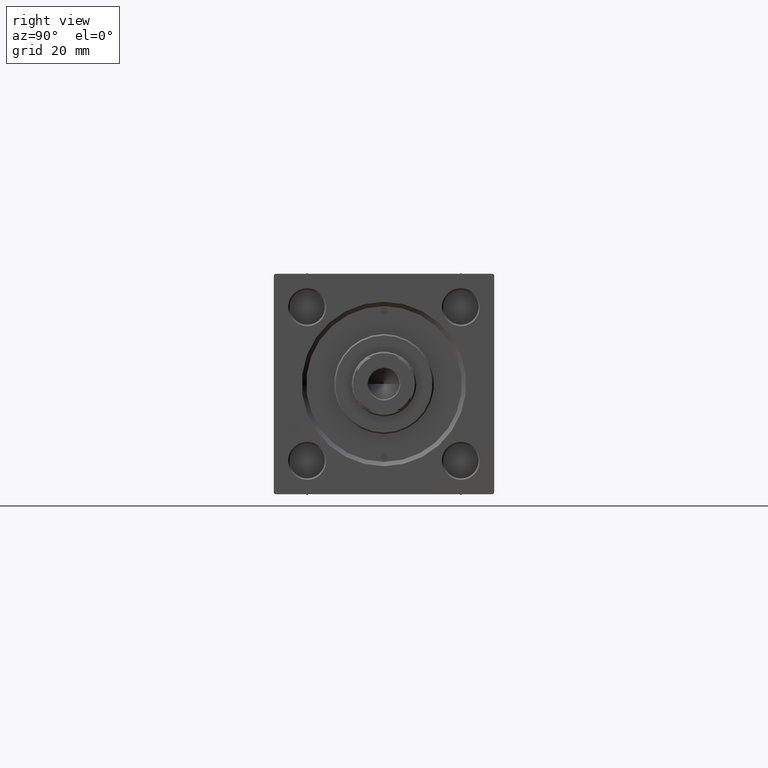
[diagram: clean part render]
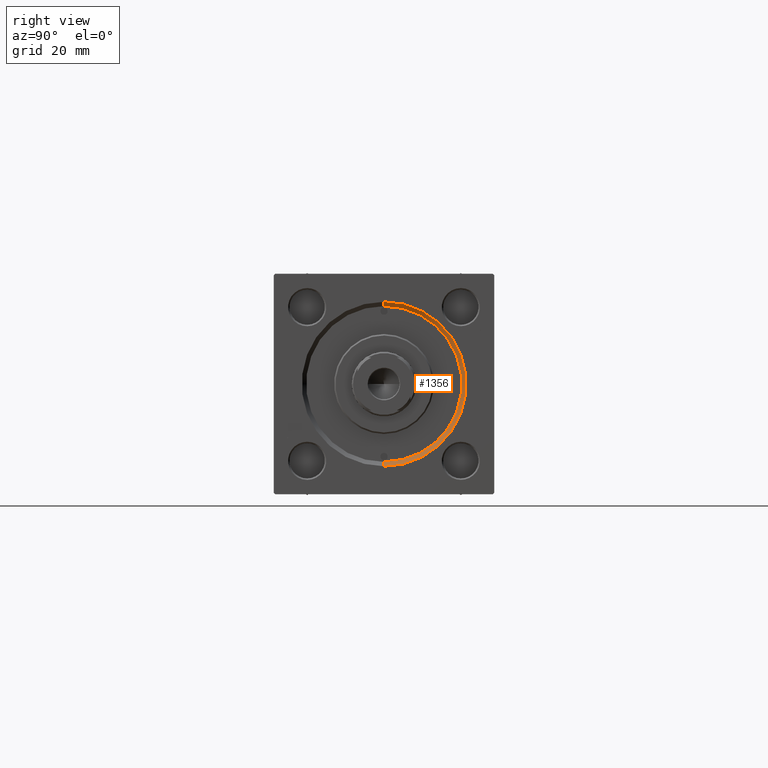
[diagram: same view with one face highlighted and labeled with its STEP entity id]
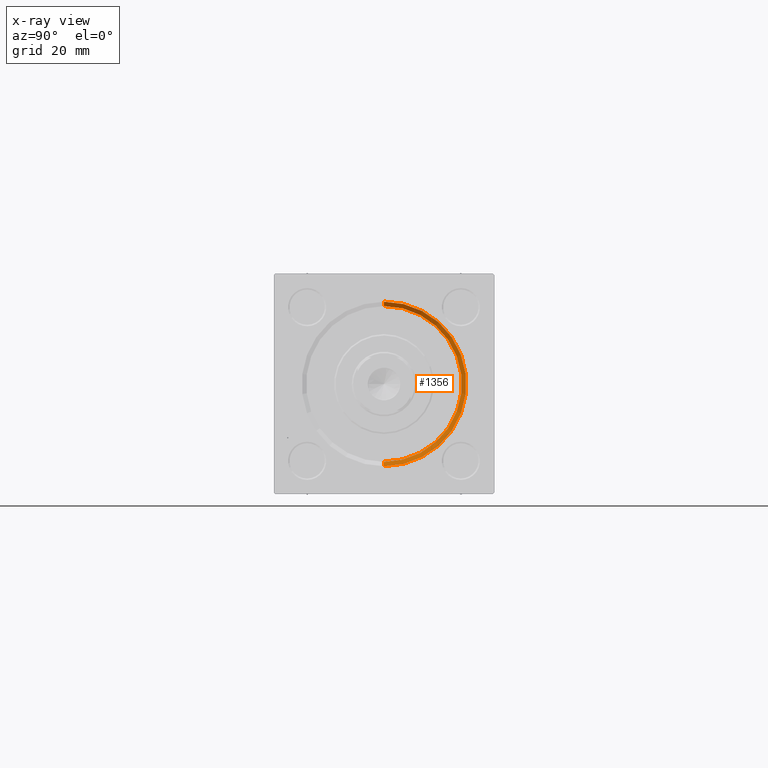
[diagram: x-ray of the same camera — body ghosted, the highlighted face saturated]
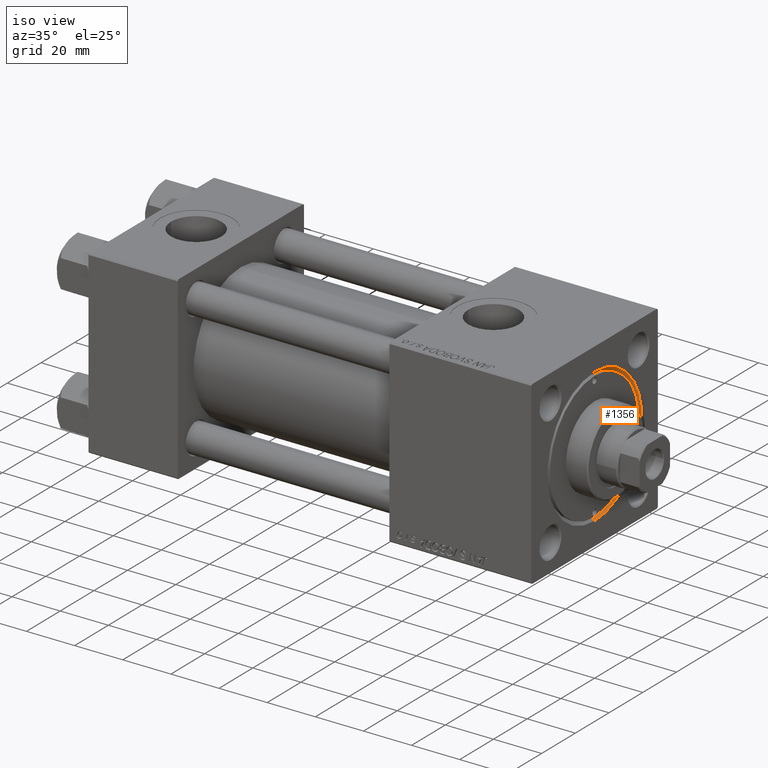
[diagram: same view with one face highlighted and labeled with its STEP entity id]
A machine part, right view. The second image highlights one B-rep face of the part: STEP entity #1356.
The next image is the same camera in x-ray: the body ghosted, the highlighted face saturated — about 0% of this face is hidden behind the body in this view.
A second angle (iso view) of the same face is appended — the face is thin or edge-on in the first view.
In plain terms, the highlighted conical surface has half-angle 45 deg.
Its self-contained STEP definition (entity closure, byte-faithful):
#133 = VECTOR ( 'NONE', #50311, 1000.000000000000000 ) ;
#938 = VECTOR ( 'NONE', #36911, 1000.000000000000000 ) ;
#1356 = ADVANCED_FACE ( 'NONE', ( #2083 ), #36156, .F. ) ;
#2083 = FACE_OUTER_BOUND ( 'NONE', #33406, .T. ) ;
#3771 = VERTEX_POINT ( 'NONE', #33731 ) ;
#6084 = CARTESIAN_POINT ( 'NONE',  ( 182.5000000000000284, 0.000000000000000000, -26.50000000000000355 ) ) ;
#8823 = VERTEX_POINT ( 'NONE', #8852 ) ;
#8852 = CARTESIAN_POINT ( 'NONE',  ( 184.0000000000000000, 3.429011037612588881E-15, 27.99999999999999645 ) ) ;
#9974 = CARTESIAN_POINT ( 'NONE',  ( 182.5000000000000284, 0.000000000000000000, 0.000000000000000000 ) ) ;
#10401 = DIRECTION ( 'NONE',  ( -1.000000000000000000, -0.000000000000000000, 0.000000000000000000 ) ) ;
#12675 = CARTESIAN_POINT ( 'NONE',  ( 182.5000000000000284, 0.000000000000000000, -26.50000000000000355 ) ) ;
#13058 = DIRECTION ( 'NONE',  ( 0.000000000000000000, 0.000000000000000000, -1.000000000000000000 ) ) ;
#18827 = CIRCLE ( 'NONE', #29419, 26.50000000000000355 ) ;
#18841 = CARTESIAN_POINT ( 'NONE',  ( 182.5000000000000284, 3.245314017740486554E-15, 26.50000000000000355 ) ) ;
#20883 = LINE ( 'NONE', #6084, #938 ) ;
#21388 = CARTESIAN_POINT ( 'NONE',  ( 184.0000000000000000, 0.000000000000000000, 0.000000000000000000 ) ) ;
#25547 = DIRECTION ( 'NONE',  ( 1.000000000000000000, 0.000000000000000000, 0.000000000000000000 ) ) ;
#29419 = AXIS2_PLACEMENT_3D ( 'NONE', #49812, #30490, #45974 ) ;
#29545 = DIRECTION ( 'NONE',  ( 0.000000000000000000, 0.000000000000000000, 1.000000000000000000 ) ) ;
#29655 = AXIS2_PLACEMENT_3D ( 'NONE', #9974, #25547, #13058 ) ;
#30490 = DIRECTION ( 'NONE',  ( 1.000000000000000000, 0.000000000000000000, 0.000000000000000000 ) ) ;
#31020 = CIRCLE ( 'NONE', #39958, 27.99999999999999645 ) ;
#33245 = VERTEX_POINT ( 'NONE', #18841 ) ;
#33406 = EDGE_LOOP ( 'NONE', ( #38981, #37085, #45071, #42984 ) ) ;
#33731 = CARTESIAN_POINT ( 'NONE',  ( 184.0000000000000000, 0.000000000000000000, -27.99999999999999645 ) ) ;
#34794 = CARTESIAN_POINT ( 'NONE',  ( 182.5000000000000284, 3.245314017740486554E-15, 26.50000000000000355 ) ) ;
#36156 = CONICAL_SURFACE ( 'NONE', #29655, 26.50000000000000355, 0.7853981633974552734 ) ;
#36911 = DIRECTION ( 'NONE',  ( 0.7071067811865426878, 0.000000000000000000, -0.7071067811865524577 ) ) ;
#37085 = ORIENTED_EDGE ( 'NONE', *, *, #49345, .F. ) ;
#38366 = LINE ( 'NONE', #34794, #133 ) ;
#38908 = EDGE_CURVE ( 'NONE', #8823, #3771, #31020, .T. ) ;
#38965 = EDGE_CURVE ( 'NONE', #40026, #3771, #20883, .T. ) ;
#38981 = ORIENTED_EDGE ( 'NONE', *, *, #49457, .F. ) ;
#39958 = AXIS2_PLACEMENT_3D ( 'NONE', #21388, #10401, #29545 ) ;
#40026 = VERTEX_POINT ( 'NONE', #12675 ) ;
#42984 = ORIENTED_EDGE ( 'NONE', *, *, #38908, .F. ) ;
#45071 = ORIENTED_EDGE ( 'NONE', *, *, #38965, .T. ) ;
#45974 = DIRECTION ( 'NONE',  ( 0.000000000000000000, 0.000000000000000000, 1.000000000000000000 ) ) ;
#49345 = EDGE_CURVE ( 'NONE', #40026, #33245, #18827, .T. ) ;
#49457 = EDGE_CURVE ( 'NONE', #33245, #8823, #38366, .T. ) ;
#49812 = CARTESIAN_POINT ( 'NONE',  ( 182.5000000000000284, 0.000000000000000000, 0.000000000000000000 ) ) ;
#50311 = DIRECTION ( 'NONE',  ( 0.7071067811865426878, 8.659560562354993255E-17, 0.7071067811865524577 ) ) ;